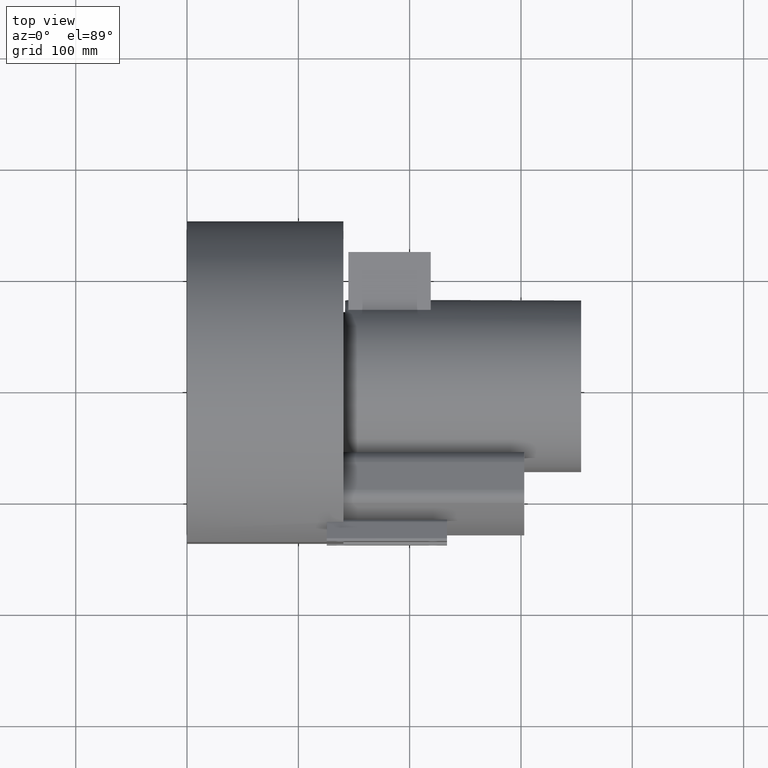
[diagram: clean part render]
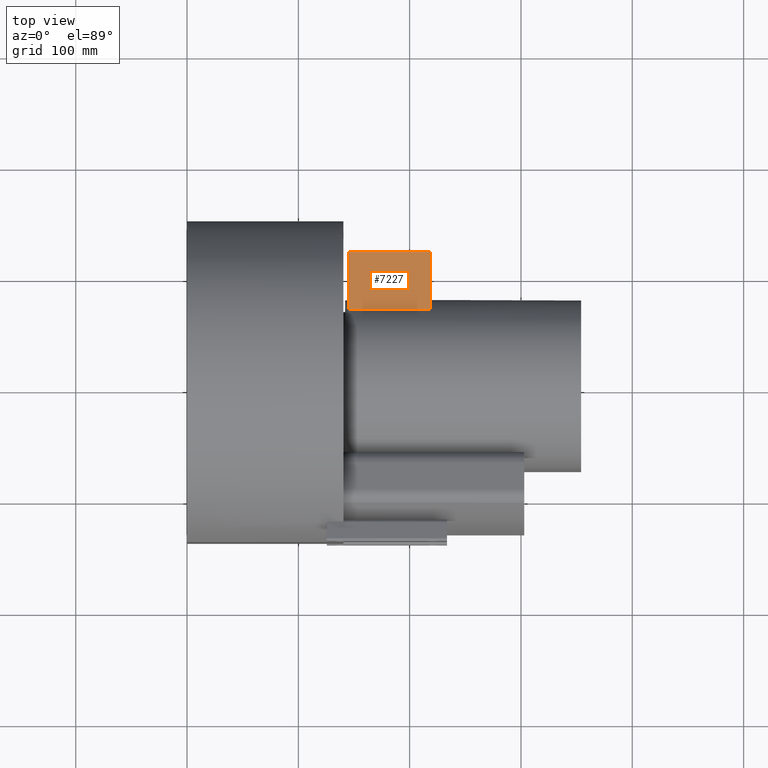
[diagram: same view with one face highlighted and labeled with its STEP entity id]
A machine part, top view. The second image highlights one B-rep face of the part: STEP entity #7227.
In plain terms, the highlighted planar face has unit normal (0, 0, 1).
Its self-contained STEP definition (entity closure, byte-faithful):
#7188=CARTESIAN_POINT('',(219.00000000000003,0.0,37.0));
#7189=DIRECTION('',(0.0,0.0,1.0));
#7190=DIRECTION('',(1.0,0.0,0.0));
#7191=AXIS2_PLACEMENT_3D('',#7188,#7189,#7190);
#7192=PLANE('',#7191);
#7193=CARTESIAN_POINT('',(219.00000000000003,68.097356776897001,37.0));
#7194=VERTEX_POINT('',#7193);
#7195=CARTESIAN_POINT('',(145.0,68.097356776897001,37.0));
#7196=VERTEX_POINT('',#7195);
#7197=CARTESIAN_POINT('',(219.00000000000003,68.097356776897001,37.0));
#7198=DIRECTION('',(-1.0,0.0,0.0));
#7199=VECTOR('',#7198,74.000000000000028);
#7200=LINE('',#7197,#7199);
#7201=EDGE_CURVE('',#7194,#7196,#7200,.T.);
#7202=ORIENTED_EDGE('',*,*,#7201,.F.);
#7203=CARTESIAN_POINT('',(219.00000000000003,120.0,37.0));
#7204=VERTEX_POINT('',#7203);
#7205=CARTESIAN_POINT('',(219.00000000000003,68.097356776897001,37.0));
#7206=DIRECTION('',(0.0,1.0,0.0));
#7207=VECTOR('',#7206,51.902643223102999);
#7208=LINE('',#7205,#7207);
#7209=EDGE_CURVE('',#7194,#7204,#7208,.T.);
#7210=ORIENTED_EDGE('',*,*,#7209,.T.);
#7211=CARTESIAN_POINT('',(145.0,120.0,37.0));
#7212=VERTEX_POINT('',#7211);
#7213=CARTESIAN_POINT('',(219.00000000000003,120.0,37.0));
#7214=DIRECTION('',(-1.0,0.0,0.0));
#7215=VECTOR('',#7214,74.000000000000028);
#7216=LINE('',#7213,#7215);
#7217=EDGE_CURVE('',#7204,#7212,#7216,.T.);
#7218=ORIENTED_EDGE('',*,*,#7217,.T.);
#7219=CARTESIAN_POINT('',(145.0,68.097356776897001,37.0));
#7220=DIRECTION('',(0.0,1.0,0.0));
#7221=VECTOR('',#7220,51.902643223102999);
#7222=LINE('',#7219,#7221);
#7223=EDGE_CURVE('',#7196,#7212,#7222,.T.);
#7224=ORIENTED_EDGE('',*,*,#7223,.F.);
#7225=EDGE_LOOP('',(#7202,#7210,#7218,#7224));
#7226=FACE_OUTER_BOUND('',#7225,.T.);
#7227=ADVANCED_FACE('',(#7226),#7192,.T.);